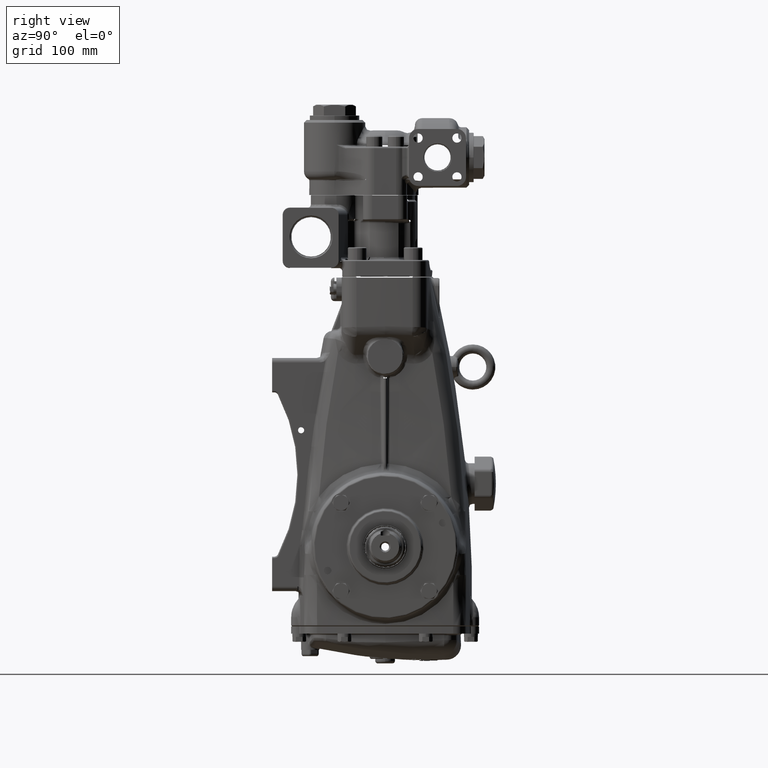
[diagram: clean part render]
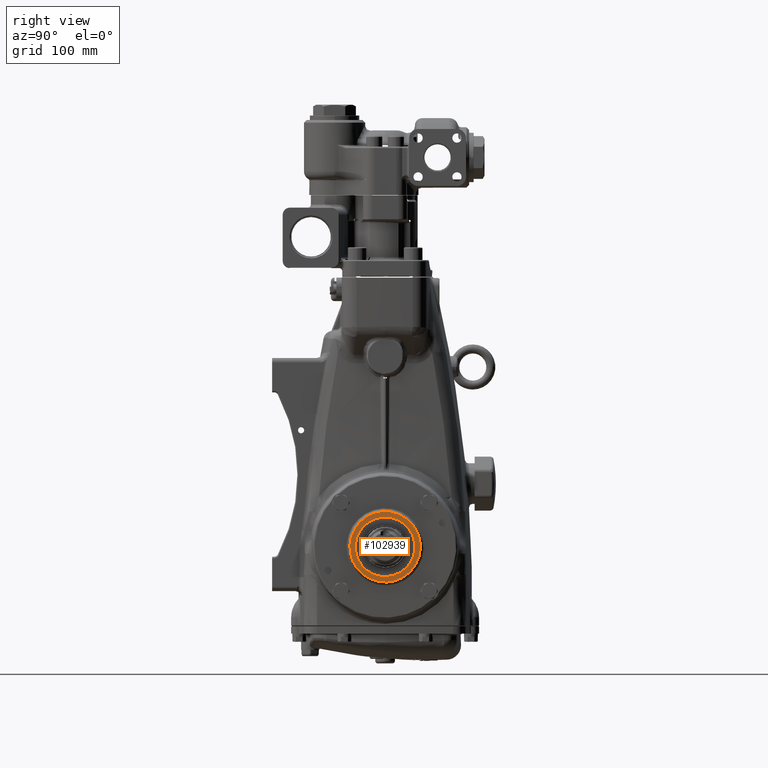
[diagram: same view with one face highlighted and labeled with its STEP entity id]
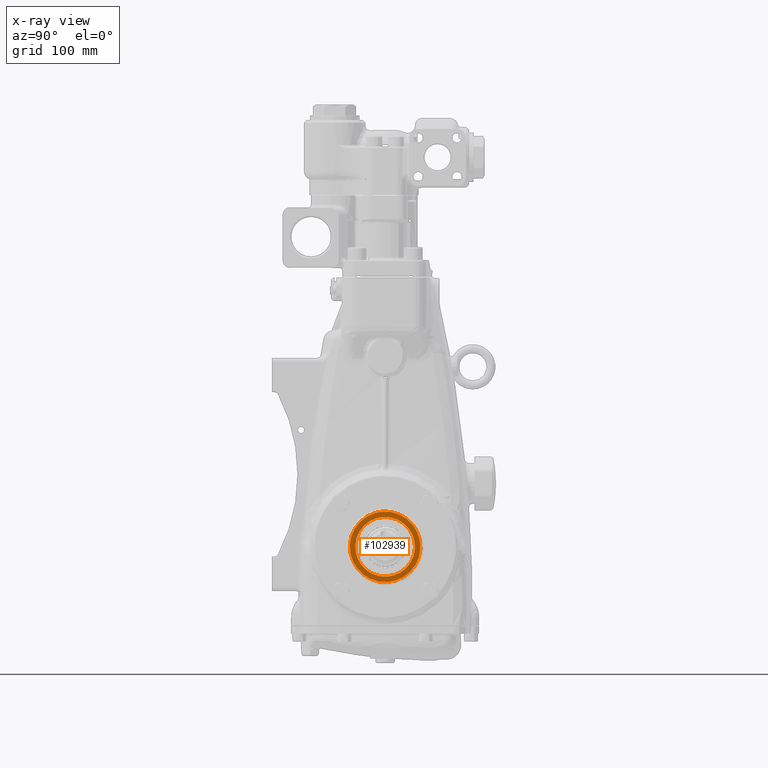
[diagram: x-ray of the same camera — body ghosted, the highlighted face saturated]
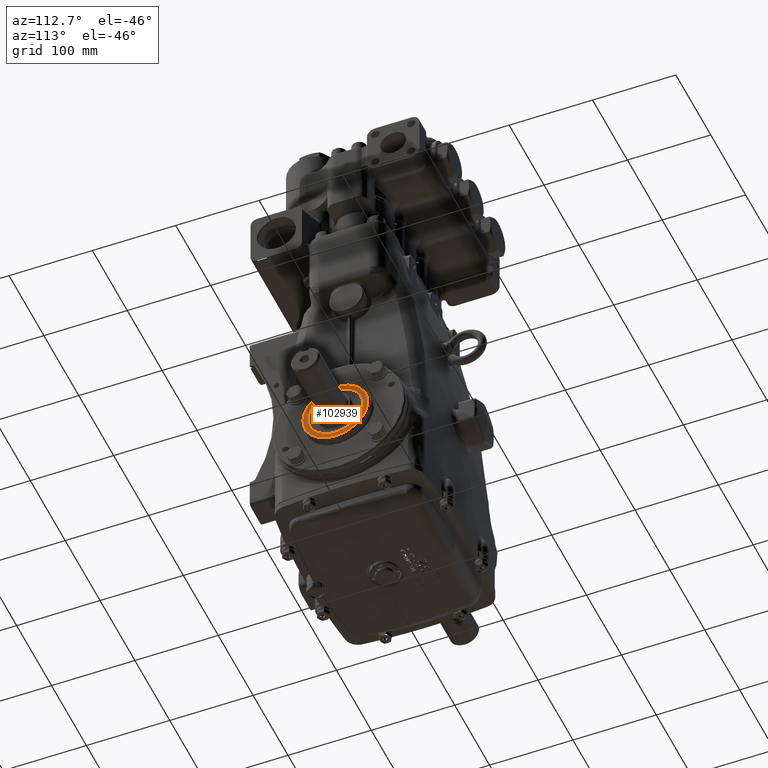
[diagram: same view with one face highlighted and labeled with its STEP entity id]
A machine part, right view. The second image highlights one B-rep face of the part: STEP entity #102939.
The next image is the same camera in x-ray: the body ghosted, the highlighted face saturated — about 0% of this face is hidden behind the body in this view.
A second angle (auxiliary view) of the same face is appended — the face is thin or edge-on in the first view.
In plain terms, the highlighted planar face has unit normal (1, 0, -0).
Its self-contained STEP definition (entity closure, byte-faithful):
#3887 = EDGE_CURVE ( 'NONE', #11649, #22016, #9584, .T. ) ;
#6153 = ORIENTED_EDGE ( 'NONE', *, *, #3887, .T. ) ;
#9584 = CIRCLE ( 'NONE', #69324, 1.535433070866142113 ) ;
#11649 = VERTEX_POINT ( 'NONE', #105627 ) ;
#13107 = DIRECTION ( 'NONE',  ( 8.752783115245576924E-17, -0.7071067811865386910, 0.7071067811865563435 ) ) ;
#13173 = VERTEX_POINT ( 'NONE', #78927 ) ;
#15624 = CARTESIAN_POINT ( 'NONE',  ( 5.600393700787400064, 1.085715136467520159, -1.085715136467547248 ) ) ;
#17538 = DIRECTION ( 'NONE',  ( 0.0000000000000000000, -0.7071067811865385799, 0.7071067811865563435 ) ) ;
#22016 = VERTEX_POINT ( 'NONE', #15624 ) ;
#23521 = PLANE ( 'NONE',  #81168 ) ;
#24604 = EDGE_LOOP ( 'NONE', ( #42482, #95978 ) ) ;
#28360 = DIRECTION ( 'NONE',  ( 1.000000000000000000, 1.132765510522192525E-16, -1.050649484868739380E-17 ) ) ;
#32329 = DIRECTION ( 'NONE',  ( 0.0000000000000000000, 0.7071067811865386910, -0.7071067811865564545 ) ) ;
#38064 = EDGE_CURVE ( 'NONE', #13173, #83154, #38594, .T. ) ;
#38594 = CIRCLE ( 'NONE', #116032, 1.299212598425196985 ) ;
#40230 = CARTESIAN_POINT ( 'NONE',  ( 5.600393700787400952, 1.659981964250728274E-16, 1.996500198928387891E-16 ) ) ;
#40782 = AXIS2_PLACEMENT_3D ( 'NONE', #70202, #112460, #17538 ) ;
#42482 = ORIENTED_EDGE ( 'NONE', *, *, #38064, .T. ) ;
#51344 = CIRCLE ( 'NONE', #69018, 1.299212598425196985 ) ;
#65797 = CARTESIAN_POINT ( 'NONE',  ( 5.600393700787400064, 7.692994116735339519E-17, 2.887182751505604154E-16 ) ) ;
#69018 = AXIS2_PLACEMENT_3D ( 'NONE', #84980, #127231, #32329 ) ;
#69324 = AXIS2_PLACEMENT_3D ( 'NONE', #91406, #28360, #70608 ) ;
#70202 = CARTESIAN_POINT ( 'NONE',  ( 5.600393700787400064, 7.692994116735341984E-17, 2.887182751505603661E-16 ) ) ;
#70608 = DIRECTION ( 'NONE',  ( 0.0000000000000000000, -0.7071067811865385799, 0.7071067811865563435 ) ) ;
#72834 = EDGE_CURVE ( 'NONE', #22016, #11649, #100505, .T. ) ;
#74723 = CARTESIAN_POINT ( 'NONE',  ( 5.600393700787400952, -0.9186820385494400831, 0.9186820385494630647 ) ) ;
#76200 = FACE_OUTER_BOUND ( 'NONE', #98203, .T. ) ;
#78927 = CARTESIAN_POINT ( 'NONE',  ( 5.600393700787400952, 0.9186820385494403052, -0.9186820385494630647 ) ) ;
#81168 = AXIS2_PLACEMENT_3D ( 'NONE', #65797, #108043, #13107 ) ;
#82511 = DIRECTION ( 'NONE',  ( -1.000000000000000000, -1.132765510522192525E-16, 1.050649484868739380E-17 ) ) ;
#83154 = VERTEX_POINT ( 'NONE', #74723 ) ;
#84980 = CARTESIAN_POINT ( 'NONE',  ( 5.600393700787400952, 1.659981964250728274E-16, 1.996500198928387891E-16 ) ) ;
#86175 = ORIENTED_EDGE ( 'NONE', *, *, #72834, .T. ) ;
#91406 = CARTESIAN_POINT ( 'NONE',  ( 5.600393700787400064, 7.692994116735341984E-17, 2.887182751505603661E-16 ) ) ;
#95978 = ORIENTED_EDGE ( 'NONE', *, *, #112541, .T. ) ;
#98203 = EDGE_LOOP ( 'NONE', ( #6153, #86175 ) ) ;
#100505 = CIRCLE ( 'NONE', #40782, 1.535433070866142113 ) ;
#102939 = ADVANCED_FACE ( 'NONE', ( #76200, #118460 ), #23521, .T. ) ;
#105627 = CARTESIAN_POINT ( 'NONE',  ( 5.600393700787400064, -1.085715136467520159, 1.085715136467547470 ) ) ;
#108043 = DIRECTION ( 'NONE',  ( 1.000000000000000000, 1.132765510522191786E-16, -1.050649484868733834E-17 ) ) ;
#112460 = DIRECTION ( 'NONE',  ( 1.000000000000000000, 1.132765510522192525E-16, -1.050649484868739380E-17 ) ) ;
#112541 = EDGE_CURVE ( 'NONE', #83154, #13173, #51344, .T. ) ;
#116032 = AXIS2_PLACEMENT_3D ( 'NONE', #40230, #82511, #124768 ) ;
#118460 = FACE_BOUND ( 'NONE', #24604, .T. ) ;
#124768 = DIRECTION ( 'NONE',  ( 0.0000000000000000000, 0.7071067811865386910, -0.7071067811865564545 ) ) ;
#127231 = DIRECTION ( 'NONE',  ( -1.000000000000000000, -1.132765510522192525E-16, 1.050649484868739380E-17 ) ) ;